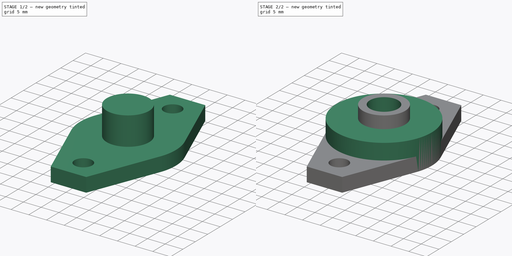
[diagram: build sequence overview — one tinted view per stage of 2, left to right]
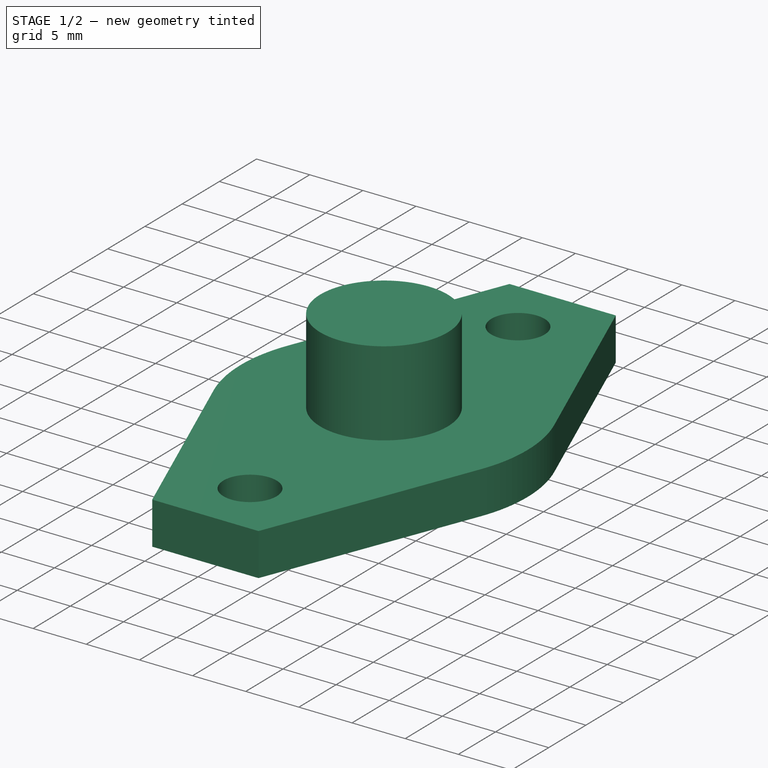
[diagram: stage 1 of 2 — iso view after this stage's code; geometry added in this stage tinted green]
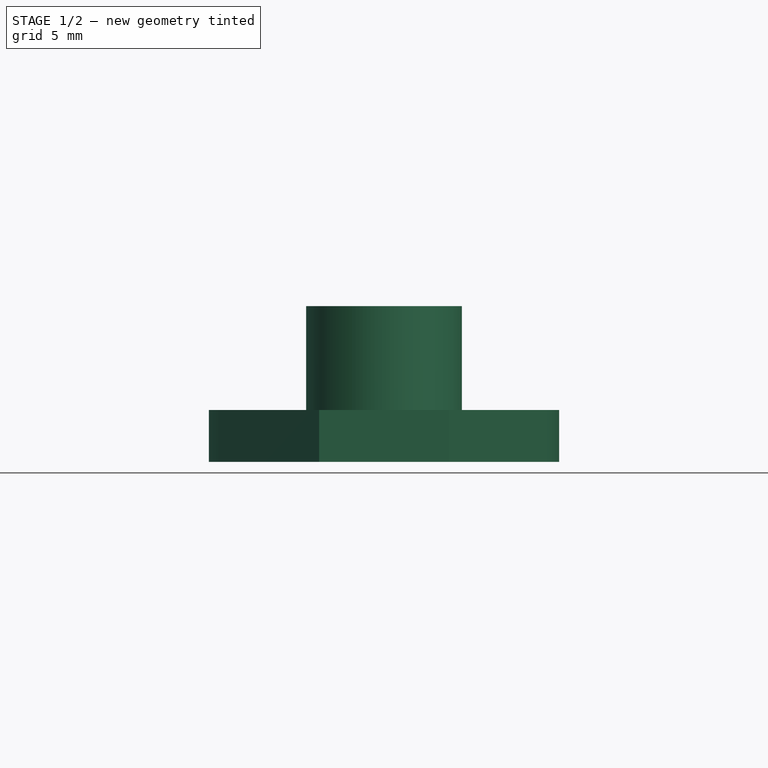
[diagram: stage 1 of 2 — front view after this stage's code; geometry added in this stage tinted green]
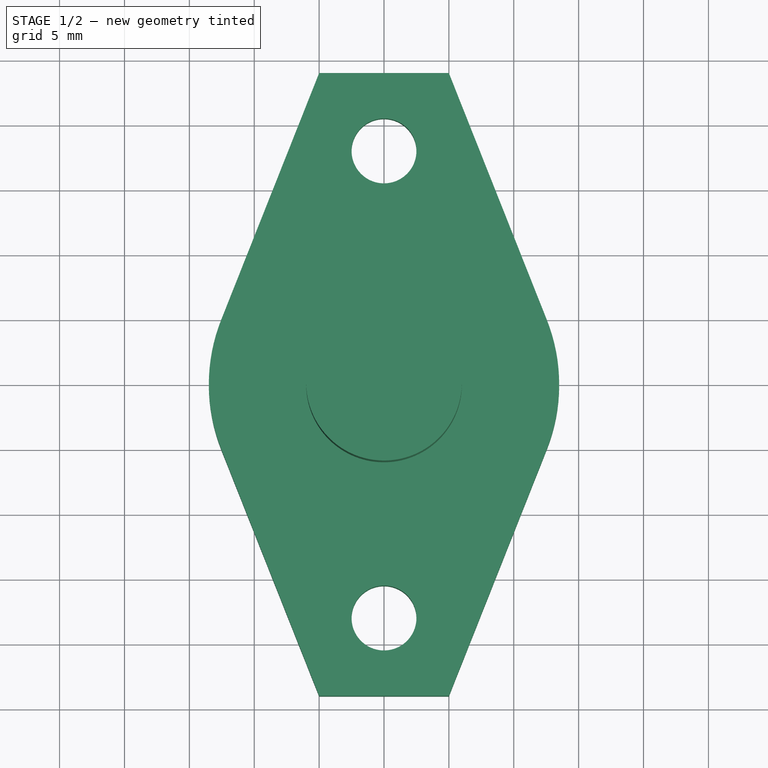
[diagram: stage 1 of 2 — top view after this stage's code; geometry added in this stage tinted green]
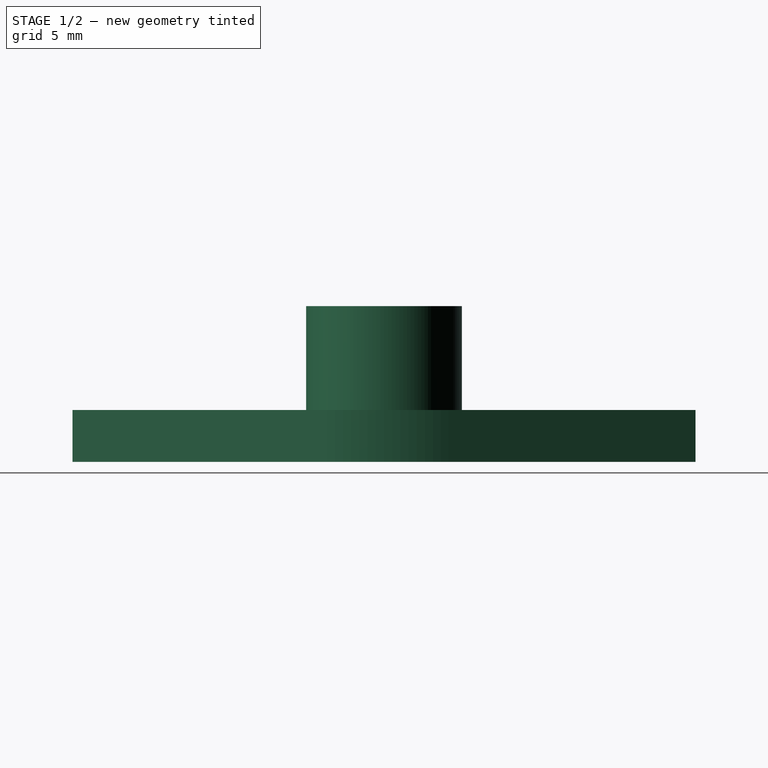
[diagram: stage 1 of 2 — right view after this stage's code; geometry added in this stage tinted green]
FCSTD DOCUMENT  (FreeCAD 0.19R)
Label: KFL08_bushing
License: All rights reserved
LicenseURL: http://en.wikipedia.org/wiki/All_rights_reserved
objects: Sketcher::SketchObject×4, PartDesign::Pad×3, PartDesign::CoordinateSystem×2, PartDesign::Pocket×1, PartDesign::Body×1, Part::Feature×1
note: 16 computed .brp shape members not serialized (recipe doc carries the construction recipe); baked Part::Feature solids carry a one-line shape summary decoded from their .brp

FEATURE [Sketcher::SketchObject] Sketch
  FullyConstrained = true
  MapMode = 5
  Support = -> [XY_Plane]
  sketch-geometry (1):
    g0: Circle CenterX=0 CenterY=0 CenterZ=0 NormalX=0 NormalY=0 NormalZ=1 AngleXU=0 Radius=6
  constraints (2):
    c: Diameter(g0) = 12
    c: Coincident(g0,g-1)
FEATURE [PartDesign::Pad] Pad
  Direction = (1,1,1)
  Length = 12
  Length2 = 100
  Profile = -> Sketch
  Type = 0
FEATURE [Sketcher::SketchObject] Sketch001
  FullyConstrained = true
  MapMode = 5
  Support = -> [XY_Plane]
  sketch-geometry (11):
    g0: ArcOfCircle CenterX=0 CenterY=0 CenterZ=0 NormalX=0 NormalY=0 NormalZ=1 AngleXU=0 Radius=13.5 StartAngle=5.90541 EndAngle=6.66096
    g1: Circle CenterX=0 CenterY=18 CenterZ=0 NormalX=0 NormalY=0 NormalZ=1 AngleXU=0 Radius=2.5
    g2: Circle CenterX=0 CenterY=-18 CenterZ=0 NormalX=0 NormalY=0 NormalZ=1 AngleXU=0 Radius=2.5
    g3: LineSegment StartX=-5 StartY=24 StartZ=0 EndX=5 EndY=24 EndZ=0
    g4: LineSegment StartX=-5 StartY=-24 StartZ=0 EndX=5 EndY=-24 EndZ=0
    g5: GeomPoint X=-3e-16 Y=24 Z=0
    g6: LineSegment StartX=5 StartY=24 StartZ=0 EndX=12.5481 EndY=4.97957 EndZ=0
    g7: LineSegment StartX=-5 StartY=24 StartZ=0 EndX=-12.5481 EndY=4.97957 EndZ=0
    g8: LineSegment StartX=-5 StartY=-24 StartZ=0 EndX=-12.5481 EndY=-4.97959 EndZ=0
    g9: LineSegment StartX=5 StartY=-24 StartZ=0 EndX=12.5481 EndY=-4.97957 EndZ=0
    g10: ArcOfCircle CenterX=0 CenterY=0 CenterZ=0 NormalX=0 NormalY=0 NormalZ=1 AngleXU=0 Radius=13.5 StartAngle=2.76381 EndAngle=3.51937
  constraints (26):
    c: Coincident(g0,g-1)
    c: Diameter(g0) = 27  'L'
    c: Symmetric(g1,g2,g0)
    c: Vertical(g1,g0)
    c: DistanceY(g2,g1) = 36
    c: Horizontal(g3)
    c: Horizontal(g4)
    c: Vertical(g3,g4)
    c: Vertical(g3,g4)
    c: Symmetric(g3,g3,g5)
    c: DistanceX(g3,g3) = 10
    c: Coincident(g6,g3)
    c: Coincident(g7,g3)
    c: Coincident(g8,g4)
    c: Coincident(g9,g4)
    c: Tangent(g0,g9) = -1.5708
    c: Coincident(g10,g8) = 1.5708
    c: Equal(g0,g10)
    c: Tangent(g0,g6) = 1.5708
    c: Tangent(g10,g7) = -1.5708
    c: Coincident(g0,g10)
    c: Symmetric(g3,g4,g0)
    c: DistanceY(g4,g3) = 48
    c: Tangent(g8,g10)
    c: Diameter(g1) = 5
    c: Equal(g1,g2)
FEATURE [PartDesign::Pad] Pad001
  BaseFeature = -> Pad
  Direction = (1,1,1)
  Length = 4
  Length2 = 100
  Profile = -> Sketch001
  Type = 0
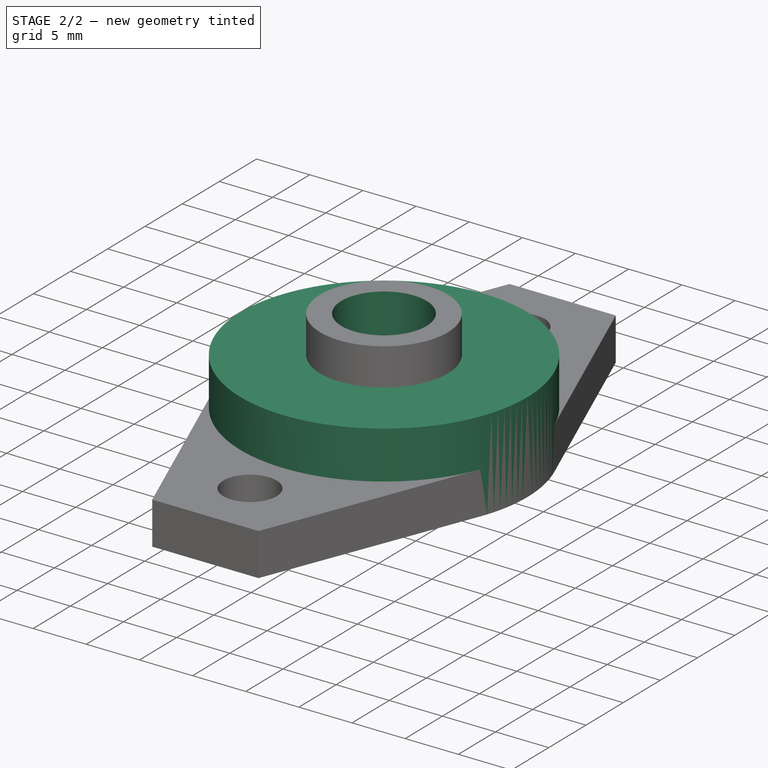
[diagram: stage 2 of 2 — iso view after this stage's code; geometry added in this stage tinted green]
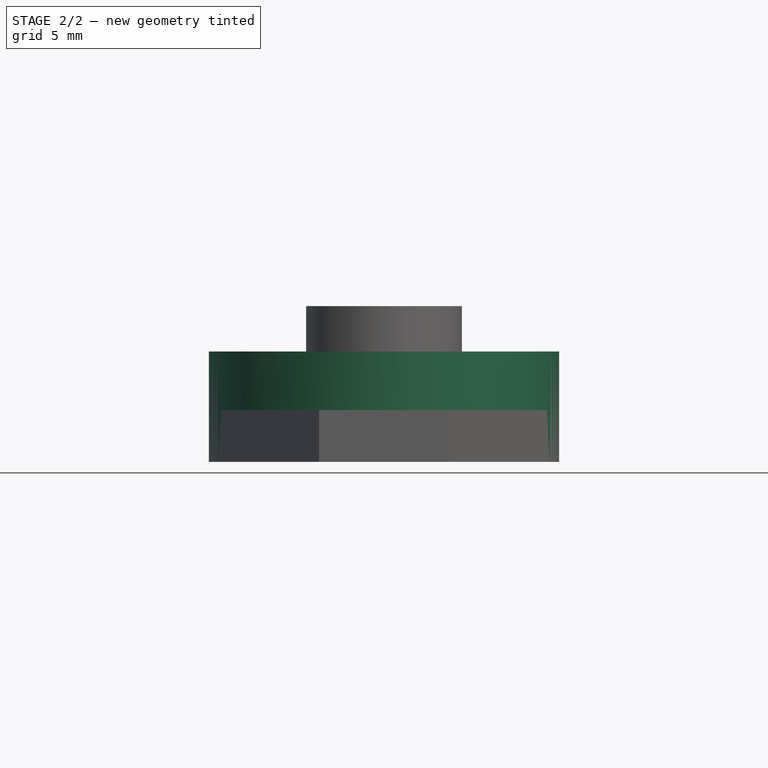
[diagram: stage 2 of 2 — front view after this stage's code; geometry added in this stage tinted green]
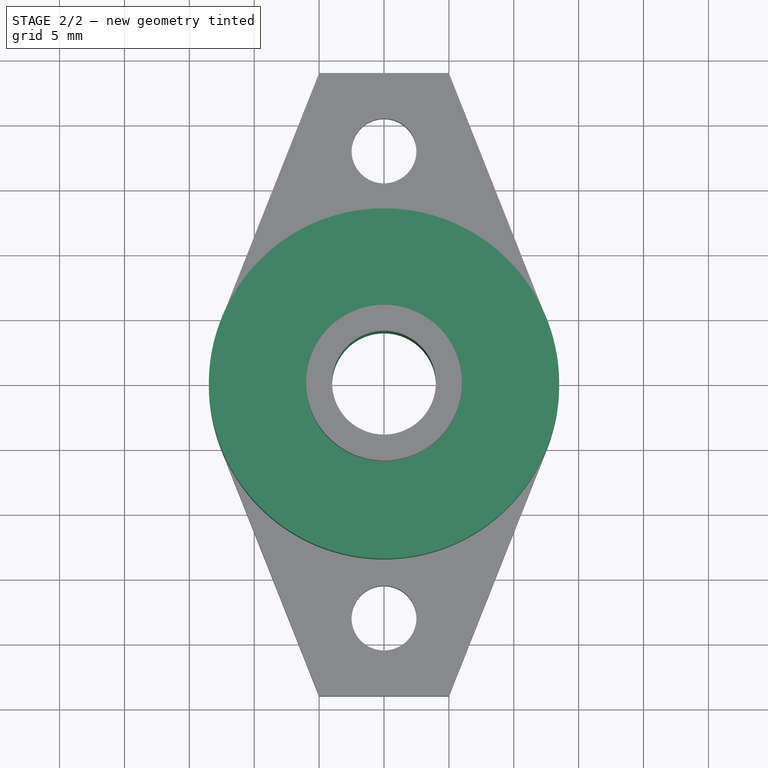
[diagram: stage 2 of 2 — top view after this stage's code; geometry added in this stage tinted green]
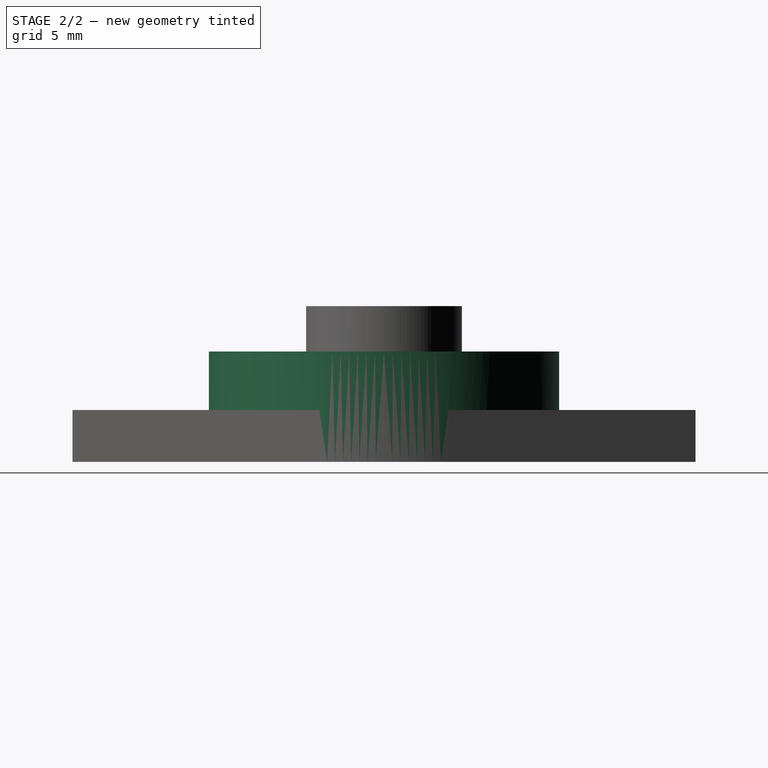
[diagram: stage 2 of 2 — right view after this stage's code; geometry added in this stage tinted green]
FEATURE [Sketcher::SketchObject] Sketch002
  ExternalGeometry = -> [Pad001]
  FullyConstrained = true
  MapMode = 5
  Support = -> [XY_Plane]
  sketch-geometry (2):
    g0: Circle CenterX=0 CenterY=0 CenterZ=0 NormalX=0 NormalY=0 NormalZ=1 AngleXU=0 Radius=13.5
    g1: GeomPoint X=12.5481 Y=-4.97957 Z=0
  constraints (3):
    c: Coincident(g0,g-1)
    c: PointOnObject(g1,g0)
    c: Coincident(g-3,g1)
FEATURE [PartDesign::Pad] Pad002
  BaseFeature = -> Pad001
  Direction = (1,1,1)
  Length = 8.5
  Length2 = 100
  Profile = -> Sketch002
  Type = 0
FEATURE [Sketcher::SketchObject] Sketch003
  FullyConstrained = true
  MapMode = 5
  Support = -> [XY_Plane]
  sketch-geometry (1):
    g0: Circle CenterX=0 CenterY=0 CenterZ=0 NormalX=0 NormalY=0 NormalZ=1 AngleXU=0 Radius=4
  constraints (2):
    c: Coincident(g0,g-1)
    c: Diameter(g0) = 8
FEATURE [PartDesign::Pocket] Pocket
  BaseFeature = -> Pad002
  Length = 5
  Length2 = 100
  Midplane = true
  Profile = -> Sketch003
  Refine = true
  Type = 1
FEATURE [PartDesign::CoordinateSystem] Local_CS
  AttacherType = Attacher::AttachEngine3D
  MapMode = 11
  Placement = pos=(0,0,12) rot=(0,0,1;1.5708rad)
  Support = -> [Pocket]
FEATURE [PartDesign::CoordinateSystem] Local_CS001
  AttacherType = Attacher::AttachEngine3D
  MapMode = 11
  Placement = pos=(0,0,0) rot=(0,0,1;1.5708rad)
  Support = -> [Pocket]
FEATURE [PartDesign::Body] Body
  Group = -> [Sketch,Pad,Sketch001,Pad001,Sketch002,Pad002,Sketch003,Pocket,Local_CS,Local_CS001]
  Origin = -> Origin
  Tip = -> Pocket
FEATURE [Part::Feature] Pocket_cs
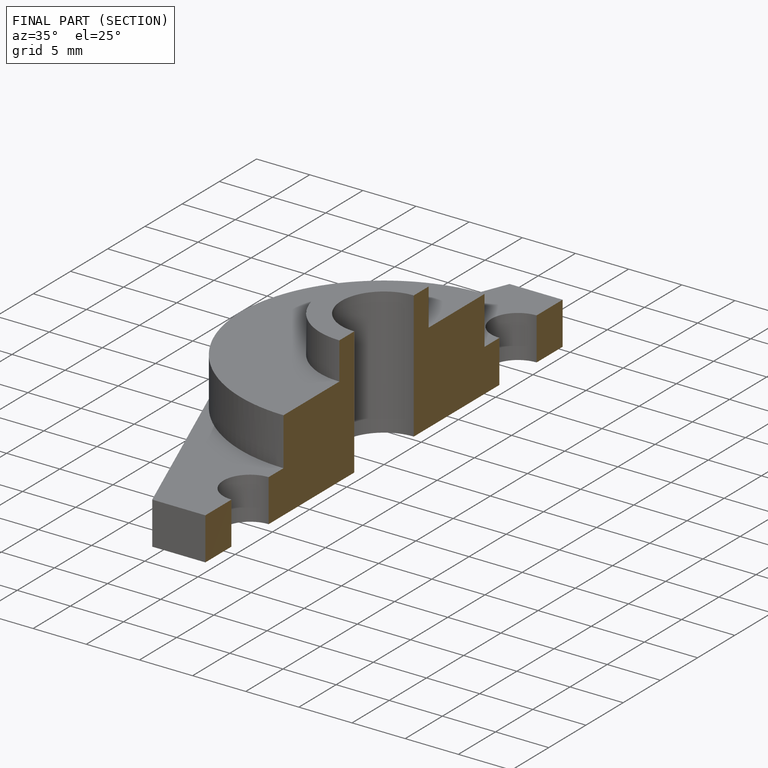
[diagram: finished part — half-section view (interior)]
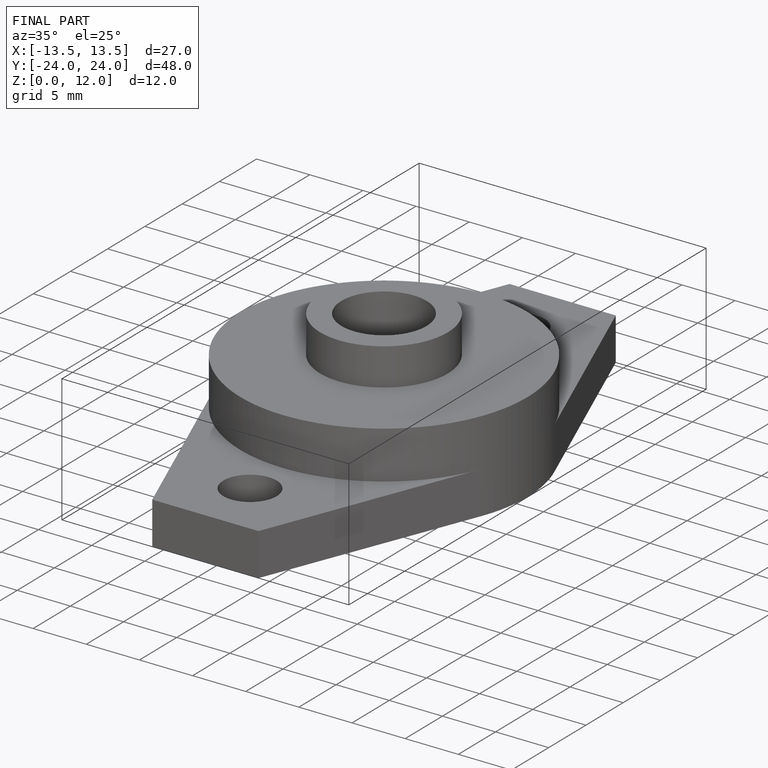
[diagram: finished part — iso view with bounding-box wireframe]
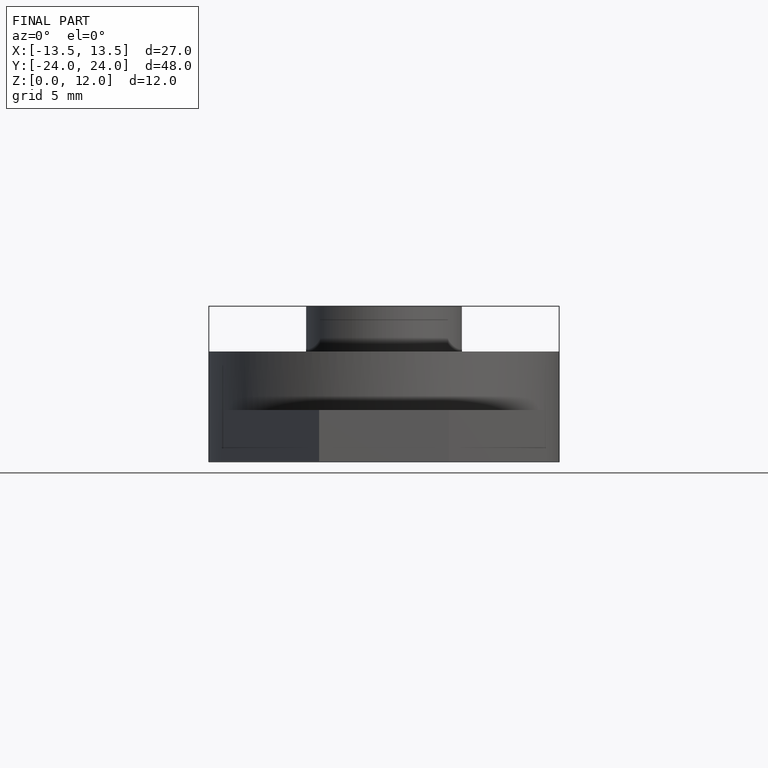
[diagram: finished part — front view with bounding-box wireframe]
